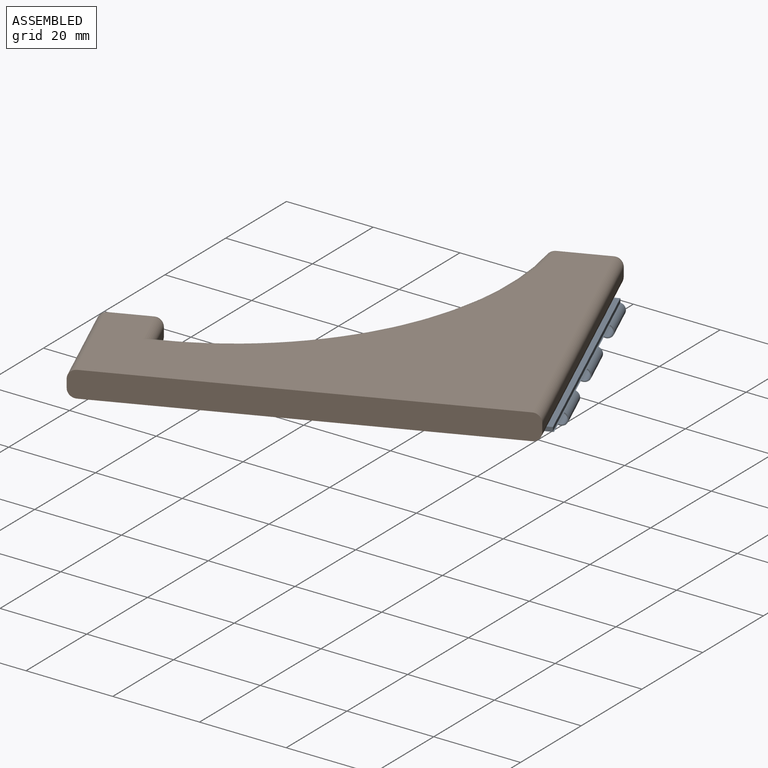
[diagram: assembled view]
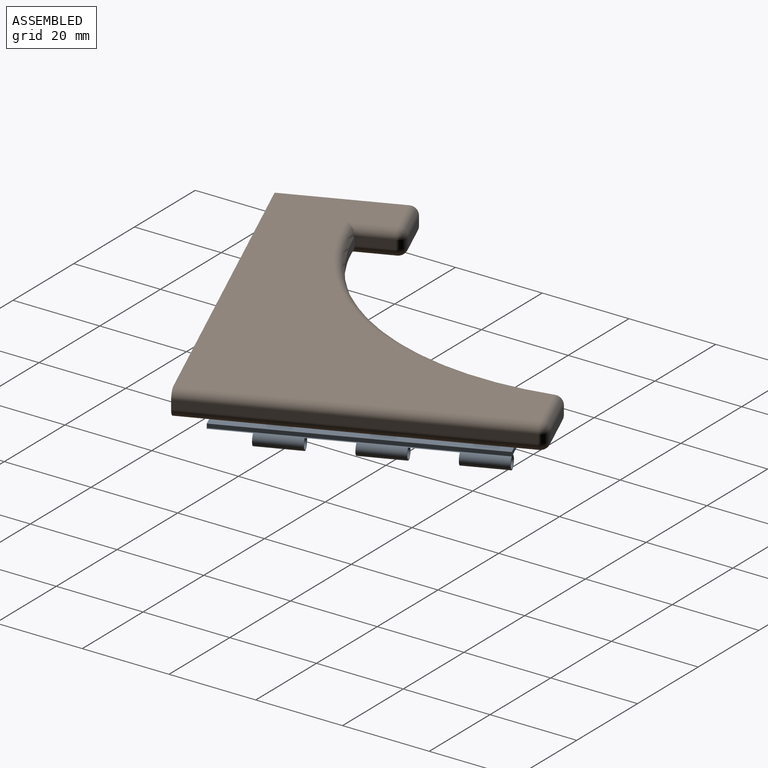
[diagram: assembled view, second angle]
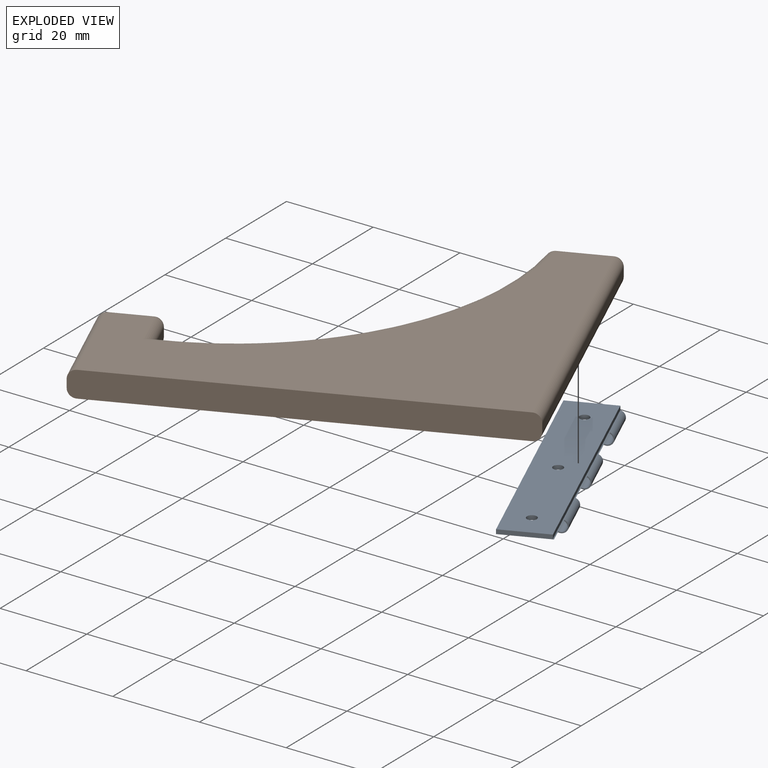
[diagram: exploded view]
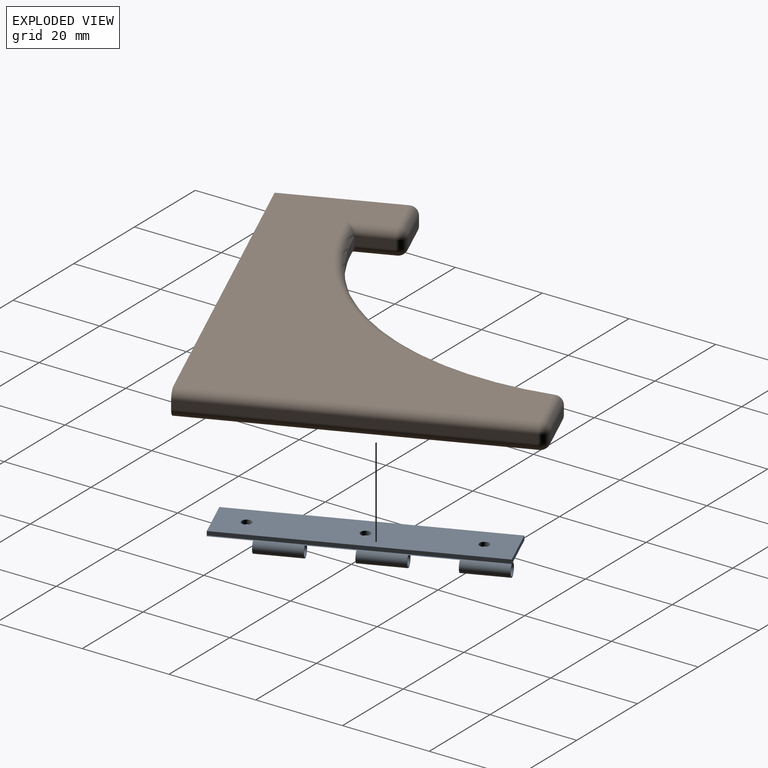
[diagram: exploded view, second angle]
ASSEMBLY  parts=2 mates=3
PART A: 18 faces, bbox 12.1x59x3.9 mm
  f0: cylinder r=1.5mm len=59mm, axis (0,1,0), area 256.9mm2, adj f1,f2,f6,f7,f8,f9,f11,f12
  f1: plane 59x11.22mm, normal (0,0,1), area 611.5mm2, adj f0,f4,f6,f7,f8,f9,f11,f12
  f2: plane 59x0.91mm, normal (-1,0,0), area 53.9mm2, adj f0,f3,f6,f7
  f3: plane 59x11mm, normal (0,0,-1), area 637mm2, adj f2,f4,f6,f7,f15,f16,f17
  f4: plane 59x1mm, normal (1,0,0), area 59mm2, adj f1,f3,f6,f7
  f5: cylinder r=1.25mm len=10mm, axis (0,1,0), area 78.5mm2, adj f7,f9
  f6: plane 11.22x1mm, normal (0,-1,0), area 11mm2, adj f0,f1,f2,f3,f4
  f7: plane 12.08x3.85mm, normal (0,1,0), area 13mm2, adj f0,f1,f2,f3,f4,f5
  f8: plane 3x2.85mm, normal (0,1,0), area 2mm2, adj f0,f1,f10
  f9: plane 3x2.85mm, normal (0,-1,0), area 2mm2, adj f0,f1,f5
  f10: cylinder r=1.25mm len=10mm, axis (0,1,0), area 78.5mm2, adj f8,f12
  f11: plane 3x2.85mm, normal (0,1,0), area 2mm2, adj f0,f1,f13
  f12: plane 3x2.85mm, normal (0,-1,0), area 2mm2, adj f0,f1,f10
  f13: cylinder r=1.25mm len=10mm, axis (0,1,0), area 78.5mm2, adj f11,f14
  f14: plane 3x2.85mm, normal (0,-1,0), area 2mm2, adj f0,f1,f13
  f15: cylinder r=1.13mm len=2.26mm, axis (0,0,1), area 7.1mm2, adj f1,f3
  f16: cylinder r=1.13mm len=2.26mm, axis (0,0,1), area 7.1mm2, adj f1,f3
  f17: cylinder r=1.13mm len=2.26mm, axis (0,0,1), area 7.1mm2, adj f1,f3
PART B: 39 faces, bbox 92x73x6 mm
  f0: plane 71x2mm, normal (-1,0,0), area 142mm2, adj f1,f15,f16,f17
  f1: plane 92x6mm, normal (0,-1,0), area 548.6mm2, adj f0,f2,f7,f8,f15,f17,f32,f35
  f2: plane 26x2mm, normal (1,0,0), area 52mm2, adj f1,f32,f35,f38
  f3: plane 9x2mm, normal (0,1,0), area 18mm2, adj f28,f33,f34,f38
  f4: plane 8x2mm, normal (-1,0,0), area 16mm2, adj f5,f27,f28,f29
  f5: cylinder r=62.51mm len=63.77mm, axis (0,0,-1), area 181.8mm2, adj f4,f21,f25,f26
  f6: plane 11.25x2mm, normal (0,1,0), area 22.5mm2, adj f16,f20,f21,f22
  f7: plane 88x71mm, normal (0,0,1), area 2964.9mm2, adj f1,f10,f12,f14,f15,f20,f25,f27
  f8: plane 88x71mm, normal (0,0,-1), area 2967.3mm2, adj f1,f17,f22,f26,f29,f34,f35
  f9: cone r=0mm half-angle=59deg, axis (0,0,1), area 0.9mm2, adj f10
  f10: cylinder r=0.5mm len=1mm, axis (0,0,1), area 3.1mm2, adj f7,f9
  f11: cone r=0mm half-angle=59deg, axis (0,0,1), area 0.9mm2, adj f12
  f12: cylinder r=0.5mm len=1mm, axis (0,0,1), area 3.1mm2, adj f7,f11
  f13: cone r=0mm half-angle=59deg, axis (0,0,1), area 0.9mm2, adj f14
  f14: cylinder r=0.5mm len=1mm, axis (0,0,1), area 3.1mm2, adj f7,f13
  f15: cylinder r=2mm len=71mm, axis (0,1,0), area 223.1mm2, adj f0,f1,f7,f18
  f16: cylinder r=2mm len=2mm, axis (0,0,-1), area 6.3mm2, adj f0,f6,f18,f19
  f17: cylinder r=2mm len=71mm, axis (0,-1,0), area 223.1mm2, adj f0,f1,f8,f19
  f18: sphere r=2mm, area 6.3mm2, adj f15,f16,f20
  f19: sphere r=2mm, area 6.3mm2, adj f16,f17,f22
  f20: cylinder r=2mm len=11.25mm, axis (1,0,0), area 35.3mm2, adj f6,f7,f18,f23
  f21: cylinder r=2mm len=2mm, axis (0,0,-1), area 5.7mm2, adj f5,f6,f23,f24
  f22: cylinder r=2mm len=11.25mm, axis (-1,0,0), area 35.3mm2, adj f6,f8,f19,f24
  f23: sphere r=2mm, area 5.7mm2, adj f20,f21,f25
  f24: sphere r=2mm, area 5.7mm2, adj f21,f22,f26
  f25: torus R=64.51mm, axis (0,0,1), area 291.1mm2, adj f5,f7,f23,f27
  f26: torus R=64.51mm, axis (0,0,1), area 291.1mm2, adj f5,f8,f24,f29
  f27: cylinder r=2mm len=9.91mm, axis (0,1,0), area 27.3mm2, adj f4,f7,f25,f30
  f28: cylinder r=2mm len=2mm, axis (0,0,1), area 6.3mm2, adj f3,f4,f30,f31
  f29: cylinder r=2mm len=9.91mm, axis (0,-1,0), area 27.3mm2, adj f4,f8,f26,f31
  f30: sphere r=2mm, area 6.3mm2, adj f27,f28,f33
  f31: sphere r=2mm, area 6.3mm2, adj f28,f29,f34
  f32: cylinder r=2mm len=26mm, axis (0,-1,0), area 81.7mm2, adj f1,f2,f7,f36
  f33: cylinder r=2mm len=9mm, axis (1,0,0), area 28.3mm2, adj f3,f7,f30,f36
  f34: cylinder r=2mm len=9mm, axis (-1,0,0), area 28.3mm2, adj f3,f8,f31,f37
  f35: cylinder r=2mm len=26mm, axis (0,1,0), area 81.7mm2, adj f1,f2,f8,f37
  f36: sphere r=2mm, area 6.3mm2, adj f32,f33,f38
  f37: sphere r=2mm, area 6.3mm2, adj f34,f35,f38
  f38: cylinder r=2mm len=2mm, axis (0,0,1), area 6.3mm2, adj f2,f3,f36,f37
PLACE A rot(axis=(0.2,-0.98,0),180deg) t=(171.34,-49.05,70.94)mm
PLACE B rot(axis=(0.2,-0.98,0),180deg) t=(153.07,-119.01,76.94)mm
MATE planar B.f11 <-> A.f16  axis (0,0,-1) through (177.56,-78.4,70.94)mm
MATE cylindrical A.f15 <-> B.f9  axis (0,0,1) through (168.75,-57.16,70.94)mm
MATE cylindrical A.f17 <-> B.f13  axis (0,0,-1) through (186.37,-99.65,69.94)mm
